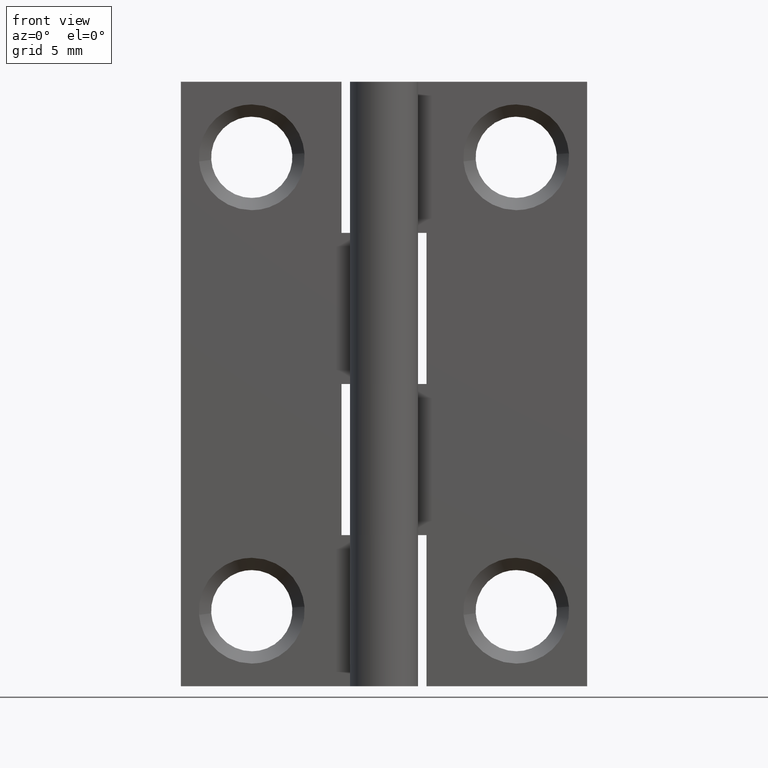
[diagram: clean part render]
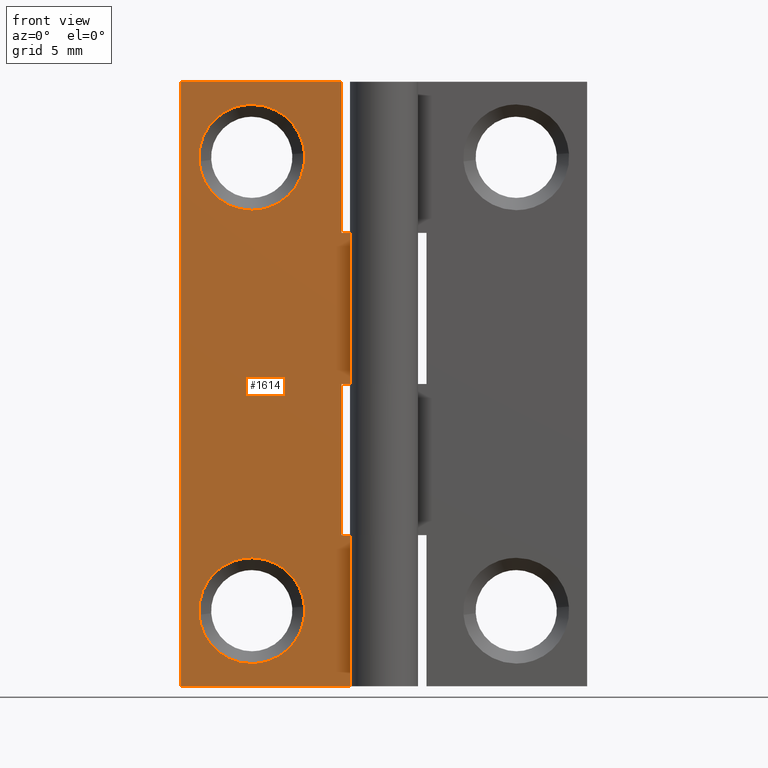
[diagram: same view with one face highlighted and labeled with its STEP entity id]
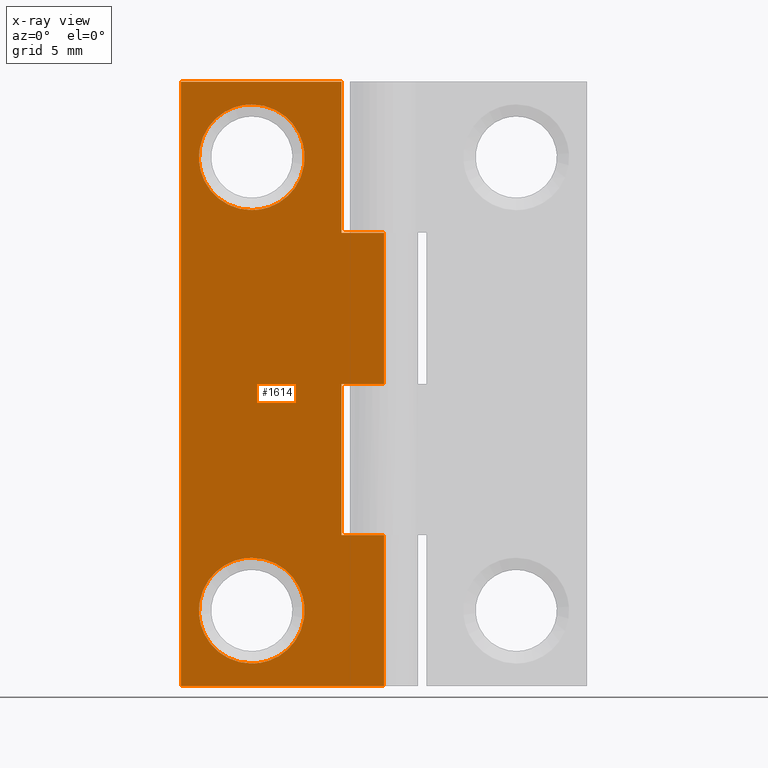
[diagram: x-ray of the same camera — body ghosted, the highlighted face saturated]
A machine part, front view. The second image highlights one B-rep face of the part: STEP entity #1614.
The next image is the same camera in x-ray: the body ghosted, the highlighted face saturated — about 0% of this face is hidden behind the body in this view.
In plain terms, the highlighted face is a freeform B-spline surface patch.
Its self-contained STEP definition (entity closure, byte-faithful):
#515=CARTESIAN_POINT('',(-4.208631453662764,0.999999999999245,28.219685468979119));
#516=VERTEX_POINT('',#515);
#522=CARTESIAN_POINT('',(-7.0,1.0,30.800000011920929));
#523=VERTEX_POINT('',#522);
#524=CARTESIAN_POINT('',(-7.0,1.0,30.800000011920929));
#525=CARTESIAN_POINT('',(-4.411706612348183,1.0,30.800000011920940));
#526=CARTESIAN_POINT('',(-4.208631453662764,0.999999999999245,28.219685468979119));
#534=(BOUNDED_CURVE()B_SPLINE_CURVE(2,(#524,#525,#526),.UNSPECIFIED.,.F.,.U.)B_SPLINE_CURVE_WITH_KNOTS((3,3),(0.0,0.236331300632057),.UNSPECIFIED.)CURVE()GEOMETRIC_REPRESENTATION_ITEM()RATIONAL_B_SPLINE_CURVE((1.0,0.723120658606029,0.969723356170333))REPRESENTATION_ITEM(''));
#535=EDGE_CURVE('',#523,#516,#534,.T.);
#537=CARTESIAN_POINT('',(-9.791368546337235,0.999999999999246,27.780314531020888));
#538=VERTEX_POINT('',#537);
#539=CARTESIAN_POINT('',(-9.791368546337235,0.999999999999246,27.780314531020888));
#540=CARTESIAN_POINT('',(-9.800000011920929,1.0,27.889987699904339));
#541=CARTESIAN_POINT('',(-9.800000011920929,1.0,28.0));
#542=CARTESIAN_POINT('',(-9.800000011920929,1.0,30.800000011920940));
#543=CARTESIAN_POINT('',(-7.0,1.0,30.800000011920929));
#551=(BOUNDED_CURVE()B_SPLINE_CURVE(2,(#539,#540,#541,#542,#543),.UNSPECIFIED.,.F.,.U.)B_SPLINE_CURVE_WITH_KNOTS((3,2,3),(0.736331300632056,0.750000000000000,1.0),.UNSPECIFIED.)CURVE()GEOMETRIC_REPRESENTATION_ITEM()RATIONAL_B_SPLINE_CURVE((0.969723356170333,0.983986122580518,1.0,0.707106781186548,1.0))REPRESENTATION_ITEM(''));
#552=EDGE_CURVE('',#538,#523,#551,.T.);
#589=CARTESIAN_POINT('',(-7.0,1.0,25.199999988079071));
#590=VERTEX_POINT('',#589);
#591=CARTESIAN_POINT('',(-7.0,1.0,25.199999988079071));
#592=CARTESIAN_POINT('',(-9.588293387651801,1.0,25.199999988079071));
#593=CARTESIAN_POINT('',(-9.791368546337235,0.999999999999246,27.780314531020885));
#601=(BOUNDED_CURVE()B_SPLINE_CURVE(2,(#591,#592,#593),.UNSPECIFIED.,.F.,.U.)B_SPLINE_CURVE_WITH_KNOTS((3,3),(0.500000000000000,0.736331300632056),.UNSPECIFIED.)CURVE()GEOMETRIC_REPRESENTATION_ITEM()RATIONAL_B_SPLINE_CURVE((1.0,0.723120658606030,0.969723356170331))REPRESENTATION_ITEM(''));
#602=EDGE_CURVE('',#590,#538,#601,.T.);
#604=CARTESIAN_POINT('',(-4.208631453662764,0.999999999999245,28.219685468979112));
#605=CARTESIAN_POINT('',(-4.199999988079071,1.0,28.110012300095665));
#606=CARTESIAN_POINT('',(-4.199999988079070,1.0,28.0));
#607=CARTESIAN_POINT('',(-4.199999988079069,1.0,25.199999988079075));
#608=CARTESIAN_POINT('',(-7.0,1.0,25.199999988079071));
#616=(BOUNDED_CURVE()B_SPLINE_CURVE(2,(#604,#605,#606,#607,#608),.UNSPECIFIED.,.F.,.U.)B_SPLINE_CURVE_WITH_KNOTS((3,2,3),(0.236331300632057,0.250000000000000,0.500000000000000),.UNSPECIFIED.)CURVE()GEOMETRIC_REPRESENTATION_ITEM()RATIONAL_B_SPLINE_CURVE((0.969723356170333,0.983986122580519,1.0,0.707106781186548,1.0))REPRESENTATION_ITEM(''));
#617=EDGE_CURVE('',#516,#590,#616,.T.);
#843=CARTESIAN_POINT('',(-4.208631453662765,0.999999999999246,4.219685468979115));
#844=VERTEX_POINT('',#843);
#850=CARTESIAN_POINT('',(-7.0,1.0,6.800000011920930));
#851=VERTEX_POINT('',#850);
#852=CARTESIAN_POINT('',(-7.0,1.0,6.800000011920930));
#853=CARTESIAN_POINT('',(-4.411706612348183,1.0,6.800000011920930));
#854=CARTESIAN_POINT('',(-4.208631453662765,0.999999999999246,4.219685468979115));
#862=(BOUNDED_CURVE()B_SPLINE_CURVE(2,(#852,#853,#854),.UNSPECIFIED.,.F.,.U.)B_SPLINE_CURVE_WITH_KNOTS((3,3),(0.0,0.236331300632057),.UNSPECIFIED.)CURVE()GEOMETRIC_REPRESENTATION_ITEM()RATIONAL_B_SPLINE_CURVE((1.0,0.723120658606029,0.969723356170333))REPRESENTATION_ITEM(''));
#863=EDGE_CURVE('',#851,#844,#862,.T.);
#865=CARTESIAN_POINT('',(-9.791368546337235,0.999999999999246,3.780314531020885));
#866=VERTEX_POINT('',#865);
#867=CARTESIAN_POINT('',(-9.791368546337235,0.999999999999246,3.780314531020885));
#868=CARTESIAN_POINT('',(-9.800000011920929,1.0,3.889987699904340));
#869=CARTESIAN_POINT('',(-9.800000011920929,1.0,4.0));
#870=CARTESIAN_POINT('',(-9.800000011920929,1.0,6.800000011920931));
#871=CARTESIAN_POINT('',(-7.0,1.0,6.800000011920930));
#879=(BOUNDED_CURVE()B_SPLINE_CURVE(2,(#867,#868,#869,#870,#871),.UNSPECIFIED.,.F.,.U.)B_SPLINE_CURVE_WITH_KNOTS((3,2,3),(0.736331300632057,0.750000000000000,1.0),.UNSPECIFIED.)CURVE()GEOMETRIC_REPRESENTATION_ITEM()RATIONAL_B_SPLINE_CURVE((0.969723356170333,0.983986122580519,1.0,0.707106781186548,1.0))REPRESENTATION_ITEM(''));
#880=EDGE_CURVE('',#866,#851,#879,.T.);
#917=CARTESIAN_POINT('',(-7.0,1.0,1.199999988079070));
#918=VERTEX_POINT('',#917);
#919=CARTESIAN_POINT('',(-7.0,1.0,1.199999988079070));
#920=CARTESIAN_POINT('',(-9.588293387651801,1.0,1.199999988079070));
#921=CARTESIAN_POINT('',(-9.791368546337235,0.999999999999246,3.780314531020884));
#929=(BOUNDED_CURVE()B_SPLINE_CURVE(2,(#919,#920,#921),.UNSPECIFIED.,.F.,.U.)B_SPLINE_CURVE_WITH_KNOTS((3,3),(0.500000000000000,0.736331300632056),.UNSPECIFIED.)CURVE()GEOMETRIC_REPRESENTATION_ITEM()RATIONAL_B_SPLINE_CURVE((1.0,0.723120658606030,0.969723356170331))REPRESENTATION_ITEM(''));
#930=EDGE_CURVE('',#918,#866,#929,.T.);
#932=CARTESIAN_POINT('',(-4.208631453662765,0.999999999999246,4.219685468979115));
#933=CARTESIAN_POINT('',(-4.199999988079071,1.0,4.110012300095660));
#934=CARTESIAN_POINT('',(-4.199999988079070,1.0,4.0));
#935=CARTESIAN_POINT('',(-4.199999988079069,1.0,1.199999988079070));
#936=CARTESIAN_POINT('',(-7.0,1.0,1.199999988079070));
#944=(BOUNDED_CURVE()B_SPLINE_CURVE(2,(#932,#933,#934,#935,#936),.UNSPECIFIED.,.F.,.U.)B_SPLINE_CURVE_WITH_KNOTS((3,2,3),(0.236331300632057,0.250000000000000,0.500000000000000),.UNSPECIFIED.)CURVE()GEOMETRIC_REPRESENTATION_ITEM()RATIONAL_B_SPLINE_CURVE((0.969723356170333,0.983986122580519,1.0,0.707106781186548,1.0))REPRESENTATION_ITEM(''));
#945=EDGE_CURVE('',#844,#918,#944,.T.);
#956=CARTESIAN_POINT('',(-2.250000000000000,1.0,32.0));
#957=VERTEX_POINT('',#956);
#958=CARTESIAN_POINT('',(-2.250000000000000,1.0,24.0));
#959=VERTEX_POINT('',#958);
#960=CARTESIAN_POINT('',(-2.250000000000000,1.0,32.0));
#961=CARTESIAN_POINT('',(-2.250000000000000,1.0,24.0));
#962=QUASI_UNIFORM_CURVE('',1,(#960,#961),.UNSPECIFIED.,.F.,.U.);
#963=EDGE_CURVE('',#957,#959,#962,.T.);
#992=CARTESIAN_POINT('',(0.0,1.0,24.0));
#993=VERTEX_POINT('',#992);
#994=CARTESIAN_POINT('',(-2.250000000000000,1.0,24.0));
#995=CARTESIAN_POINT('',(0.0,1.0,24.0));
#996=QUASI_UNIFORM_CURVE('',1,(#994,#995),.UNSPECIFIED.,.F.,.U.);
#997=EDGE_CURVE('',#959,#993,#996,.T.);
#1071=CARTESIAN_POINT('',(-2.250000000000000,1.0,7.999999999999900));
#1072=VERTEX_POINT('',#1071);
#1085=CARTESIAN_POINT('',(-2.250000000000000,1.0,16.0));
#1086=VERTEX_POINT('',#1085);
#1092=CARTESIAN_POINT('',(-2.250000000000000,1.0,7.999999999999900));
#1093=CARTESIAN_POINT('',(-2.250000000000000,1.0,16.0));
#1094=QUASI_UNIFORM_CURVE('',1,(#1092,#1093),.UNSPECIFIED.,.F.,.U.);
#1095=EDGE_CURVE('',#1072,#1086,#1094,.T.);
#1107=CARTESIAN_POINT('',(0.0,1.0,7.999999999999900));
#1108=VERTEX_POINT('',#1107);
#1169=CARTESIAN_POINT('',(0.0,1.0,7.999999999999900));
#1170=CARTESIAN_POINT('',(-2.250000000000000,1.0,7.999999999999900));
#1171=QUASI_UNIFORM_CURVE('',1,(#1169,#1170),.UNSPECIFIED.,.F.,.U.);
#1172=EDGE_CURVE('',#1108,#1072,#1171,.T.);
#1225=CARTESIAN_POINT('',(0.0,1.0,16.0));
#1226=VERTEX_POINT('',#1225);
#1246=CARTESIAN_POINT('',(-2.250000000000000,1.0,16.0));
#1247=CARTESIAN_POINT('',(0.0,1.0,16.0));
#1248=QUASI_UNIFORM_CURVE('',1,(#1246,#1247),.UNSPECIFIED.,.F.,.U.);
#1249=EDGE_CURVE('',#1086,#1226,#1248,.T.);
#1259=CARTESIAN_POINT('',(-10.750000000000000,0.999999999999986,32.0));
#1260=VERTEX_POINT('',#1259);
#1261=CARTESIAN_POINT('',(-10.750000000000000,0.999999999999986,32.0));
#1262=CARTESIAN_POINT('',(-2.250000000000000,1.0,32.0));
#1263=QUASI_UNIFORM_CURVE('',1,(#1261,#1262),.UNSPECIFIED.,.F.,.U.);
#1264=EDGE_CURVE('',#1260,#957,#1263,.T.);
#1289=CARTESIAN_POINT('',(-10.750000000000000,0.999999999999986,0.0));
#1290=VERTEX_POINT('',#1289);
#1331=CARTESIAN_POINT('',(0.0,0.999999999999986,0.0));
#1332=VERTEX_POINT('',#1331);
#1352=CARTESIAN_POINT('',(-10.750000000000000,0.999999999999986,0.0));
#1353=CARTESIAN_POINT('',(0.0,0.999999999999986,0.0));
#1354=QUASI_UNIFORM_CURVE('',1,(#1352,#1353),.UNSPECIFIED.,.F.,.U.);
#1355=EDGE_CURVE('',#1290,#1332,#1354,.T.);
#1372=CARTESIAN_POINT('',(-10.750000000000000,0.999999999999986,0.0));
#1373=CARTESIAN_POINT('',(-10.750000000000000,0.999999999999986,32.0));
#1374=QUASI_UNIFORM_CURVE('',1,(#1372,#1373),.UNSPECIFIED.,.F.,.U.);
#1375=EDGE_CURVE('',#1290,#1260,#1374,.T.);
#1513=CARTESIAN_POINT('',(0.0,0.999999999999986,0.0));
#1514=CARTESIAN_POINT('',(0.0,1.0,7.999999999999900));
#1515=QUASI_UNIFORM_CURVE('',1,(#1513,#1514),.UNSPECIFIED.,.F.,.U.);
#1516=EDGE_CURVE('',#1332,#1108,#1515,.T.);
#1545=CARTESIAN_POINT('',(0.0,1.0,16.0));
#1546=CARTESIAN_POINT('',(0.0,1.0,24.0));
#1547=QUASI_UNIFORM_CURVE('',1,(#1545,#1546),.UNSPECIFIED.,.F.,.U.);
#1548=EDGE_CURVE('',#1226,#993,#1547,.T.);
#1585=CARTESIAN_POINT('',(-11.286962479164410,0.999999999999986,33.598399937977788));
#1586=CARTESIAN_POINT('',(-11.286962479164410,0.999999999999986,-1.598400796284675));
#1587=CARTESIAN_POINT('',(0.536962767501883,0.999999999999986,33.598399937977788));
#1588=CARTESIAN_POINT('',(0.536962767501883,0.999999999999986,-1.598400796284675));
#1589=B_SPLINE_SURFACE_WITH_KNOTS('',1,1,((#1585,#1587),(#1586,#1588)),.UNSPECIFIED.,.F.,.F.,.U.,(2,2),(2,2),(0.0,35.196800734262460),(0.0,11.823925246666301),.UNSPECIFIED.);
#1590=ORIENTED_EDGE('',*,*,#963,.F.);
#1591=ORIENTED_EDGE('',*,*,#1264,.F.);
#1592=ORIENTED_EDGE('',*,*,#1375,.F.);
#1593=ORIENTED_EDGE('',*,*,#1355,.T.);
#1594=ORIENTED_EDGE('',*,*,#1516,.T.);
#1595=ORIENTED_EDGE('',*,*,#1172,.T.);
#1596=ORIENTED_EDGE('',*,*,#1095,.T.);
#1597=ORIENTED_EDGE('',*,*,#1249,.T.);
#1598=ORIENTED_EDGE('',*,*,#1548,.T.);
#1599=ORIENTED_EDGE('',*,*,#997,.F.);
#1600=EDGE_LOOP('',(#1590,#1591,#1592,#1593,#1594,#1595,#1596,#1597,#1598,#1599));
#1601=FACE_OUTER_BOUND('',#1600,.T.);
#1602=ORIENTED_EDGE('',*,*,#930,.T.);
#1603=ORIENTED_EDGE('',*,*,#880,.T.);
#1604=ORIENTED_EDGE('',*,*,#863,.T.);
#1605=ORIENTED_EDGE('',*,*,#945,.T.);
#1606=EDGE_LOOP('',(#1602,#1603,#1604,#1605));
#1607=FACE_BOUND('',#1606,.T.);
#1608=ORIENTED_EDGE('',*,*,#602,.T.);
#1609=ORIENTED_EDGE('',*,*,#552,.T.);
#1610=ORIENTED_EDGE('',*,*,#535,.T.);
#1611=ORIENTED_EDGE('',*,*,#617,.T.);
#1612=EDGE_LOOP('',(#1608,#1609,#1610,#1611));
#1613=FACE_BOUND('',#1612,.T.);
#1614=ADVANCED_FACE('',(#1601,#1607,#1613),#1589,.T.);